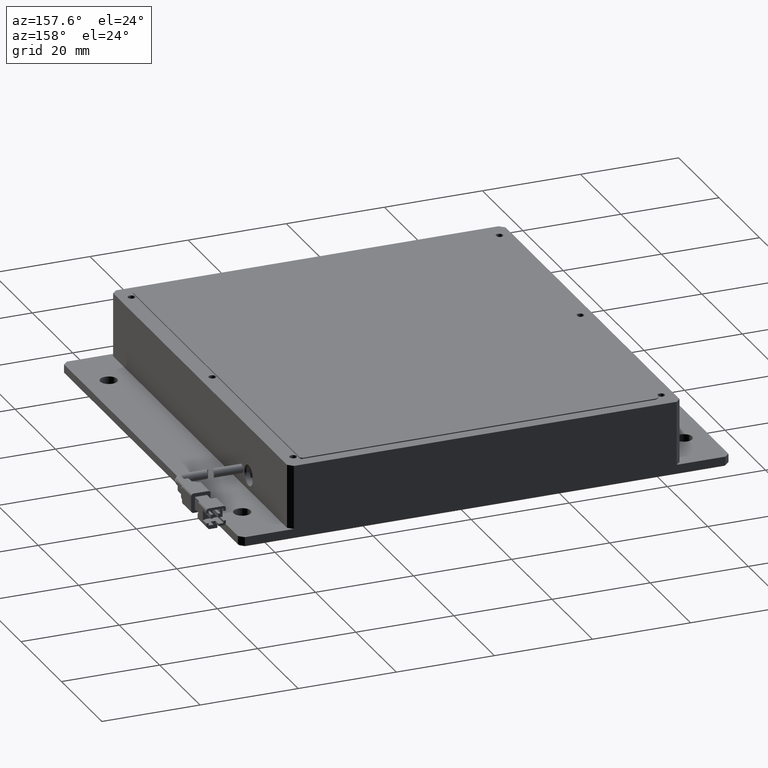
[diagram: clean part render]
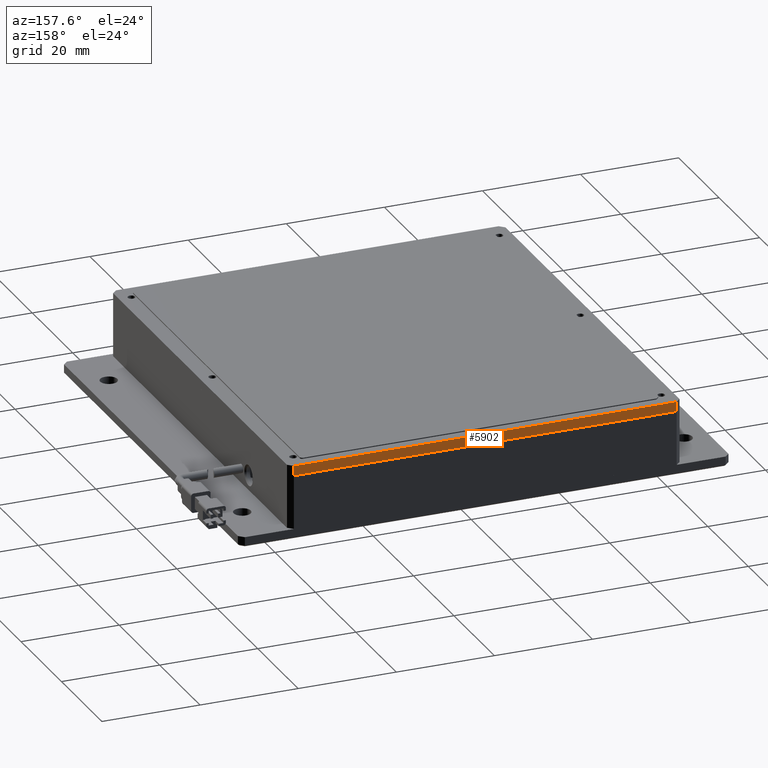
[diagram: same view with one face highlighted and labeled with its STEP entity id]
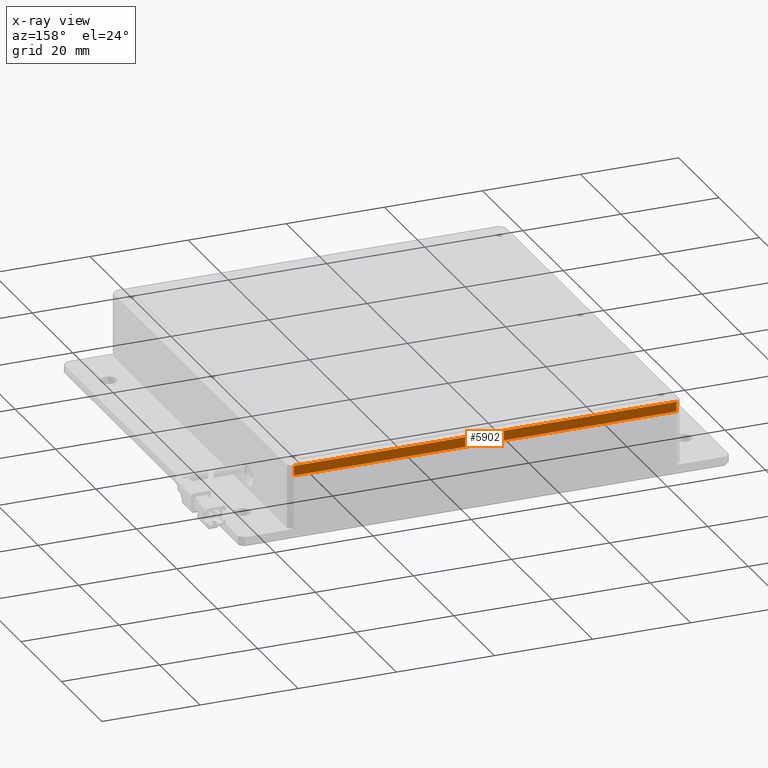
[diagram: x-ray of the same camera — body ghosted, the highlighted face saturated]
A machine part, auxiliary view. The second image highlights one B-rep face of the part: STEP entity #5902.
The next image is the same camera in x-ray: the body ghosted, the highlighted face saturated — about 0% of this face is hidden behind the body in this view.
In plain terms, the highlighted planar face has unit normal (-0, -1, 0).
Its self-contained STEP definition (entity closure, byte-faithful):
#562 = VERTEX_POINT ( 'NONE', #16990 ) ;
#784 = PLANE ( 'NONE',  #11005 ) ;
#795 = ORIENTED_EDGE ( 'NONE', *, *, #6060, .F. ) ;
#1120 = EDGE_LOOP ( 'NONE', ( #4123, #14406, #795, #15021 ) ) ;
#2894 = LINE ( 'NONE', #4089, #10208 ) ;
#2906 = CARTESIAN_POINT ( 'NONE',  ( 57.05231004200074100, 39.79992363497522200, 10.99999999999545100 ) ) ;
#3214 = FACE_OUTER_BOUND ( 'NONE', #1120, .T. ) ;
#4089 = CARTESIAN_POINT ( 'NONE',  ( 57.05231004200074100, 39.79992363497522200, 12.99999999999545100 ) ) ;
#4123 = ORIENTED_EDGE ( 'NONE', *, *, #16041, .F. ) ;
#5372 = CARTESIAN_POINT ( 'NONE',  ( 56.05231004200073400, 39.79992363497522200, 10.99999999999545100 ) ) ;
#5656 = EDGE_CURVE ( 'NONE', #562, #10125, #14535, .T. ) ;
#5902 = ADVANCED_FACE ( 'NONE', ( #3214 ), #784, .F. ) ;
#6060 = EDGE_CURVE ( 'NONE', #14896, #562, #7970, .T. ) ;
#6847 = DIRECTION ( 'NONE',  ( -1.000000000000000000, 4.440892098500626200E-016, -0.0000000000000000000 ) ) ;
#7019 = CARTESIAN_POINT ( 'NONE',  ( 56.05231004200073400, 39.79992363497522200, 10.99999999999545100 ) ) ;
#7393 = VERTEX_POINT ( 'NONE', #14350 ) ;
#7770 = DIRECTION ( 'NONE',  ( -4.440892098500626200E-016, -1.000000000000000000, 0.0000000000000000000 ) ) ;
#7970 = LINE ( 'NONE', #17692, #11535 ) ;
#8221 = DIRECTION ( 'NONE',  ( 0.0000000000000000000, -0.0000000000000000000, -1.000000000000000000 ) ) ;
#8479 = DIRECTION ( 'NONE',  ( 1.000000000000000000, -4.440892098500626200E-016, -0.0000000000000000000 ) ) ;
#9857 = LINE ( 'NONE', #5372, #17060 ) ;
#10125 = VERTEX_POINT ( 'NONE', #7019 ) ;
#10208 = VECTOR ( 'NONE', #6847, 1000.000000000000000 ) ;
#11005 = AXIS2_PLACEMENT_3D ( 'NONE', #15877, #7770, #17223 ) ;
#11535 = VECTOR ( 'NONE', #8221, 1000.000000000000000 ) ;
#13996 = EDGE_CURVE ( 'NONE', #7393, #14896, #2894, .T. ) ;
#14350 = CARTESIAN_POINT ( 'NONE',  ( 56.05231004200073400, 39.79992363497522200, 12.99999999999545100 ) ) ;
#14406 = ORIENTED_EDGE ( 'NONE', *, *, #5656, .F. ) ;
#14535 = LINE ( 'NONE', #2906, #16025 ) ;
#14855 = DIRECTION ( 'NONE',  ( -0.0000000000000000000, 0.0000000000000000000, 1.000000000000000000 ) ) ;
#14896 = VERTEX_POINT ( 'NONE', #17095 ) ;
#15021 = ORIENTED_EDGE ( 'NONE', *, *, #13996, .F. ) ;
#15877 = CARTESIAN_POINT ( 'NONE',  ( 57.05231004200074100, 39.79992363497522200, 10.99999999999545100 ) ) ;
#16025 = VECTOR ( 'NONE', #8479, 1000.000000000000000 ) ;
#16041 = EDGE_CURVE ( 'NONE', #10125, #7393, #9857, .T. ) ;
#16990 = CARTESIAN_POINT ( 'NONE',  ( -21.94768995799924800, 39.79992363497525800, 10.99999999999545100 ) ) ;
#17060 = VECTOR ( 'NONE', #14855, 1000.000000000000000 ) ;
#17095 = CARTESIAN_POINT ( 'NONE',  ( -21.94768995799926300, 39.79992363497525800, 12.99999999999545100 ) ) ;
#17223 = DIRECTION ( 'NONE',  ( -0.0000000000000000000, 0.0000000000000000000, 1.000000000000000000 ) ) ;
#17692 = CARTESIAN_POINT ( 'NONE',  ( -21.94768995799926300, 39.79992363497525800, 10.99999999999545100 ) ) ;